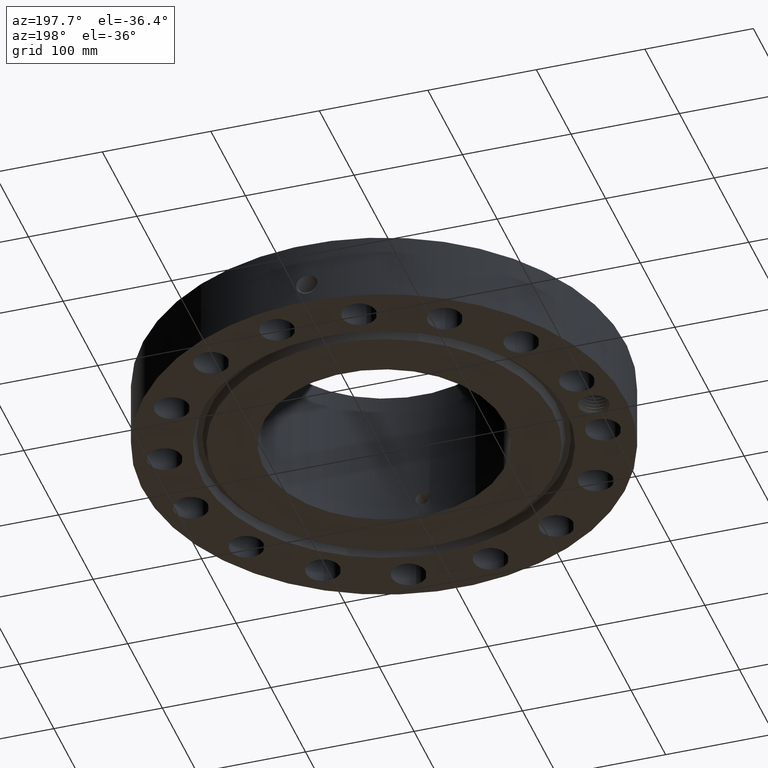
[diagram: clean part render]
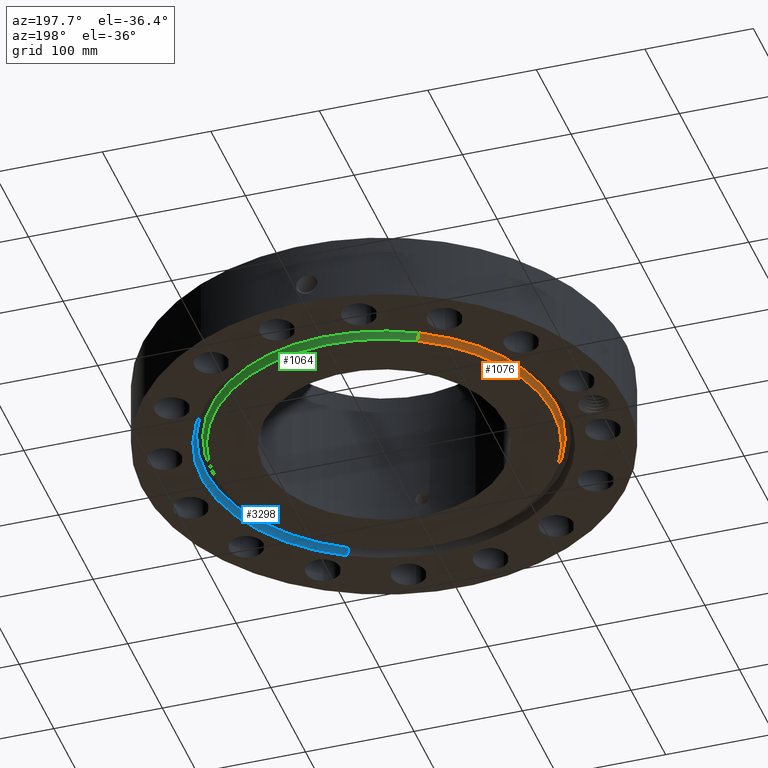
[diagram: same view with three faces highlighted in distinct colors, each labeled with its STEP entity id]
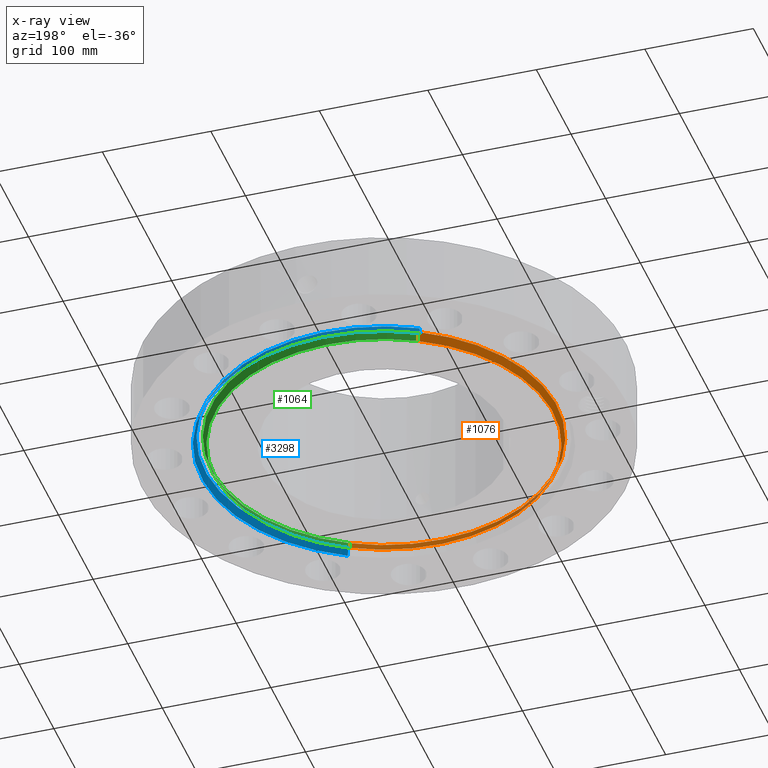
[diagram: x-ray of the same camera — body ghosted, the three highlighted faces saturated]
A machine part, auxiliary view with three faces highlighted in distinct colors.
The next image is the same camera in x-ray (body ghosted, the three faces saturated) — at least one of them is partly hidden behind the body in this view.
Their STEP definitions:

[orange] entity #1076 — the highlighted conical surface has half-angle 23 deg.
#611=AXIS2_PLACEMENT_3D('Circle Axis2P3D',#609,#610,$) ;
#1037=AXIS2_PLACEMENT_3D('Cone Axis2P3D',#1034,#1035,#1036) ;
#1067=AXIS2_PLACEMENT_3D('Circle Axis2P3D',#1065,#1066,$) ;
#604=CARTESIAN_POINT('Vertex',(-2.94391251981,5.38879572131,0.)) ;
#606=CARTESIAN_POINT('Vertex',(2.94391251981,-5.38879572131,0.)) ;
#609=CARTESIAN_POINT('Axis2P3D Location',(5.59482469102E-016,5.59482469102E-016,0.)) ;
#1034=CARTESIAN_POINT('Axis2P3D Location',(0.,0.,-0.0600000000002)) ;
#1039=CARTESIAN_POINT('Line Origine',(-2.97379932392,5.44350314927,0.146860966928)) ;
#1043=CARTESIAN_POINT('Vertex',(-3.00368612803,5.49821057724,0.293721933856)) ;
#1050=CARTESIAN_POINT('Vertex',(3.00368612803,-5.49821057724,0.293721933856)) ;
#1053=CARTESIAN_POINT('Line Origine',(2.97379932392,-5.44350314927,0.146860966928)) ;
#1065=CARTESIAN_POINT('Axis2P3D Location',(0.,0.,0.293721933856)) ;
#610=DIRECTION('Axis2P3D Direction',(0.,0.,-0.0393700787402)) ;
#1035=DIRECTION('Axis2P3D Direction',(0.,0.,0.0393700787402)) ;
#1036=DIRECTION('Axis2P3D XDirection',(-0.0188750212049,0.0345504945626,0.)) ;
#1040=DIRECTION('Vector Direction',(-0.00737505833565,0.0134999537303,0.0362403485611)) ;
#1054=DIRECTION('Vector Direction',(0.00737505833565,-0.0134999537303,0.0362403485611)) ;
#1066=DIRECTION('Axis2P3D Direction',(0.,0.,0.0393700787402)) ;
#1041=VECTOR('Line Direction',#1040,0.0393700787402) ;
#1055=VECTOR('Line Direction',#1054,0.0393700787402) ;
#1071=ORIENTED_EDGE('',*,*,#1057,.F.) ;
#1072=ORIENTED_EDGE('',*,*,#1069,.F.) ;
#1073=ORIENTED_EDGE('',*,*,#1045,.T.) ;
#1074=ORIENTED_EDGE('',*,*,#613,.F.) ;
#1076=ADVANCED_FACE('PartBody',(#1075),#1038,.T.) ;
#612=CIRCLE('generated circle',#611,6.14050000002) ;
#1068=CIRCLE('generated circle',#1067,6.26517756391) ;
#1038=CONICAL_SURFACE('Cone',#1037,6.11503151105,0.401425727959) ;
#613=EDGE_CURVE('',#607,#605,#612,.T.) ;
#1045=EDGE_CURVE('',#1044,#605,#1042,.F.) ;
#1057=EDGE_CURVE('',#1051,#607,#1056,.F.) ;
#1069=EDGE_CURVE('',#1044,#1051,#1068,.T.) ;
#1070=EDGE_LOOP('',(#1071,#1072,#1073,#1074)) ;
#1075=FACE_OUTER_BOUND('',#1070,.T.) ;
#1042=LINE('Line',#1039,#1041) ;
#1056=LINE('Line',#1053,#1055) ;
#605=VERTEX_POINT('',#604) ;
#607=VERTEX_POINT('',#606) ;
#1044=VERTEX_POINT('',#1043) ;
#1051=VERTEX_POINT('',#1050) ;

[blue] entity #3298 — the highlighted conical surface has half-angle 23 deg.
#2609=AXIS2_PLACEMENT_3D('Circle Axis2P3D',#2607,#2608,$) ;
#3271=AXIS2_PLACEMENT_3D('Cone Axis2P3D',#3268,#3269,#3270) ;
#3275=AXIS2_PLACEMENT_3D('Circle Axis2P3D',#3273,#3274,$) ;
#2607=CARTESIAN_POINT('Axis2P3D Location',(0.,0.,0.293721933856)) ;
#2611=CARTESIAN_POINT('Vertex',(3.1089894892,-5.69096708691,0.293721933856)) ;
#2613=CARTESIAN_POINT('Vertex',(-3.1089894892,5.69096708691,0.293721933856)) ;
#3268=CARTESIAN_POINT('Axis2P3D Location',(0.,0.,0.293721933856)) ;
#3273=CARTESIAN_POINT('Axis2P3D Location',(0.,0.,0.)) ;
#3277=CARTESIAN_POINT('Vertex',(-3.16876309742,5.80038194284,0.)) ;
#3279=CARTESIAN_POINT('Vertex',(3.16876309742,-5.80038194284,0.)) ;
#3282=CARTESIAN_POINT('Line Origine',(3.13887629331,-5.74567451487,0.146860966928)) ;
#3287=CARTESIAN_POINT('Line Origine',(-3.13887629331,5.74567451487,0.146860966928)) ;
#2608=DIRECTION('Axis2P3D Direction',(0.,0.,0.0393700787402)) ;
#3269=DIRECTION('Axis2P3D Direction',(-0.,-0.,-0.0393700787402)) ;
#3270=DIRECTION('Axis2P3D XDirection',(0.0188750212049,-0.0345504945626,0.)) ;
#3274=DIRECTION('Axis2P3D Direction',(0.,0.,-0.0393700787402)) ;
#3283=DIRECTION('Vector Direction',(0.00737505833565,-0.0134999537303,-0.0362403485611)) ;
#3288=DIRECTION('Vector Direction',(-0.00737505833565,0.0134999537303,-0.0362403485611)) ;
#3284=VECTOR('Line Direction',#3283,0.0393700787402) ;
#3289=VECTOR('Line Direction',#3288,0.0393700787402) ;
#3293=ORIENTED_EDGE('',*,*,#3281,.T.) ;
#3294=ORIENTED_EDGE('',*,*,#3286,.T.) ;
#3295=ORIENTED_EDGE('',*,*,#2615,.T.) ;
#3296=ORIENTED_EDGE('',*,*,#3291,.F.) ;
#3298=ADVANCED_FACE('PartBody',(#3297),#3272,.F.) ;
#2610=CIRCLE('generated circle',#2609,6.48482243614) ;
#3276=CIRCLE('generated circle',#3275,6.60950000003) ;
#3272=CONICAL_SURFACE('Cone',#3271,6.48482243614,0.401425727959) ;
#2615=EDGE_CURVE('',#2612,#2614,#2610,.T.) ;
#3281=EDGE_CURVE('',#3278,#3280,#3276,.T.) ;
#3286=EDGE_CURVE('',#3280,#2612,#3285,.F.) ;
#3291=EDGE_CURVE('',#3278,#2614,#3290,.F.) ;
#3292=EDGE_LOOP('',(#3293,#3294,#3295,#3296)) ;
#3297=FACE_OUTER_BOUND('',#3292,.T.) ;
#3285=LINE('Line',#3282,#3284) ;
#3290=LINE('Line',#3287,#3289) ;
#2612=VERTEX_POINT('',#2611) ;
#2614=VERTEX_POINT('',#2613) ;
#3278=VERTEX_POINT('',#3277) ;
#3280=VERTEX_POINT('',#3279) ;

[green] entity #1064 — the highlighted conical surface has half-angle 23 deg.
#602=AXIS2_PLACEMENT_3D('Circle Axis2P3D',#600,#601,$) ;
#1037=AXIS2_PLACEMENT_3D('Cone Axis2P3D',#1034,#1035,#1036) ;
#1048=AXIS2_PLACEMENT_3D('Circle Axis2P3D',#1046,#1047,$) ;
#600=CARTESIAN_POINT('Axis2P3D Location',(2.23792987641E-015,5.59482469102E-016,0.)) ;
#604=CARTESIAN_POINT('Vertex',(-2.94391251981,5.38879572131,0.)) ;
#606=CARTESIAN_POINT('Vertex',(2.94391251981,-5.38879572131,0.)) ;
#1034=CARTESIAN_POINT('Axis2P3D Location',(0.,0.,-0.0600000000002)) ;
#1039=CARTESIAN_POINT('Line Origine',(-2.97379932392,5.44350314927,0.146860966928)) ;
#1043=CARTESIAN_POINT('Vertex',(-3.00368612803,5.49821057724,0.293721933856)) ;
#1046=CARTESIAN_POINT('Axis2P3D Location',(0.,0.,0.293721933856)) ;
#1050=CARTESIAN_POINT('Vertex',(3.00368612803,-5.49821057724,0.293721933856)) ;
#1053=CARTESIAN_POINT('Line Origine',(2.97379932392,-5.44350314927,0.146860966928)) ;
#601=DIRECTION('Axis2P3D Direction',(0.,0.,-0.0393700787402)) ;
#1035=DIRECTION('Axis2P3D Direction',(0.,0.,0.0393700787402)) ;
#1036=DIRECTION('Axis2P3D XDirection',(-0.0188750212049,0.0345504945626,0.)) ;
#1040=DIRECTION('Vector Direction',(-0.00737505833565,0.0134999537303,0.0362403485611)) ;
#1047=DIRECTION('Axis2P3D Direction',(0.,0.,0.0393700787402)) ;
#1054=DIRECTION('Vector Direction',(0.00737505833565,-0.0134999537303,0.0362403485611)) ;
#1041=VECTOR('Line Direction',#1040,0.0393700787402) ;
#1055=VECTOR('Line Direction',#1054,0.0393700787402) ;
#1059=ORIENTED_EDGE('',*,*,#1045,.F.) ;
#1060=ORIENTED_EDGE('',*,*,#1052,.F.) ;
#1061=ORIENTED_EDGE('',*,*,#1057,.T.) ;
#1062=ORIENTED_EDGE('',*,*,#608,.F.) ;
#1064=ADVANCED_FACE('PartBody',(#1063),#1038,.T.) ;
#603=CIRCLE('generated circle',#602,6.14050000002) ;
#1049=CIRCLE('generated circle',#1048,6.26517756391) ;
#1038=CONICAL_SURFACE('Cone',#1037,6.11503151105,0.401425727959) ;
#608=EDGE_CURVE('',#605,#607,#603,.T.) ;
#1045=EDGE_CURVE('',#1044,#605,#1042,.F.) ;
#1052=EDGE_CURVE('',#1051,#1044,#1049,.T.) ;
#1057=EDGE_CURVE('',#1051,#607,#1056,.F.) ;
#1058=EDGE_LOOP('',(#1059,#1060,#1061,#1062)) ;
#1063=FACE_OUTER_BOUND('',#1058,.T.) ;
#1042=LINE('Line',#1039,#1041) ;
#1056=LINE('Line',#1053,#1055) ;
#605=VERTEX_POINT('',#604) ;
#607=VERTEX_POINT('',#606) ;
#1044=VERTEX_POINT('',#1043) ;
#1051=VERTEX_POINT('',#1050) ;